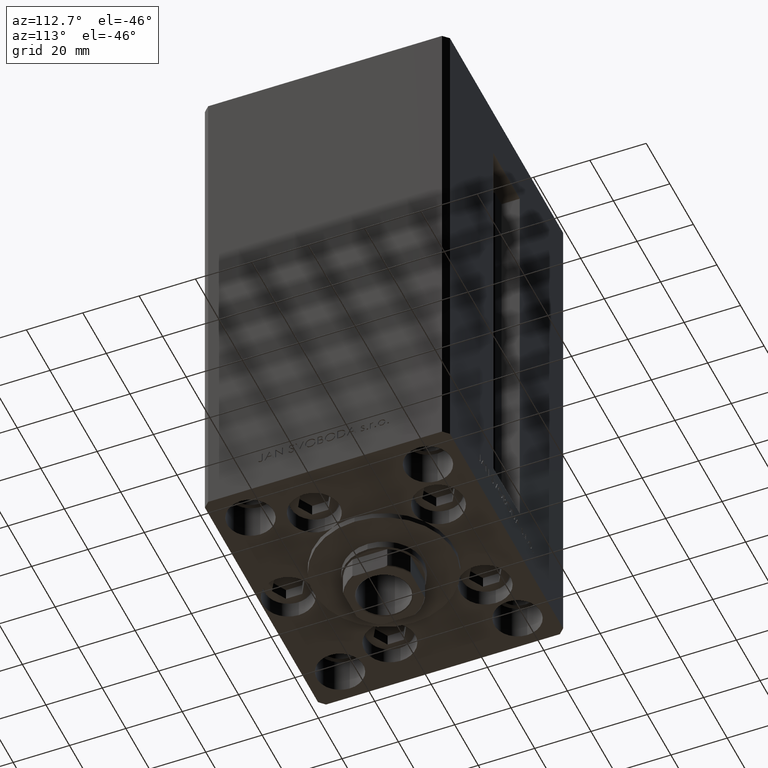
[diagram: clean part render]
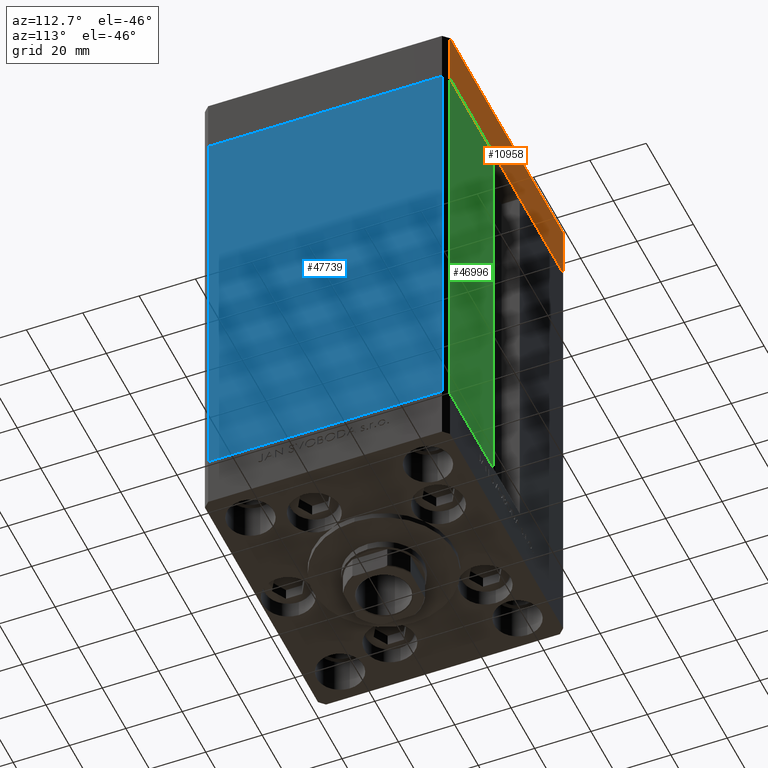
[diagram: same view with three faces highlighted in distinct colors, each labeled with its STEP entity id]
A machine part, auxiliary view with three faces highlighted in distinct colors.
Their STEP definitions:

[orange] entity #10958 — the highlighted planar face has unit normal (-0, 1, 0).
#187 = FACE_OUTER_BOUND ( 'NONE', #11790, .T. ) ;
#1093 = EDGE_CURVE ( 'NONE', #12986, #43703, #24673, .T. ) ;
#6086 = DIRECTION ( 'NONE',  ( -1.000000000000000000, -3.614007241618350743E-16, 0.000000000000000000 ) ) ;
#8573 = DIRECTION ( 'NONE',  ( -3.614007241618350743E-16, 1.000000000000000000, 0.000000000000000000 ) ) ;
#8701 = CARTESIAN_POINT ( 'NONE',  ( 47.99999999999990763, 43.50000000000000000, -19.00000000000000000 ) ) ;
#10484 = VECTOR ( 'NONE', #11972, 1000.000000000000000 ) ;
#10871 = VERTEX_POINT ( 'NONE', #18524 ) ;
#10958 = ADVANCED_FACE ( 'NONE', ( #187 ), #34735, .T. ) ;
#11790 = EDGE_LOOP ( 'NONE', ( #38138, #28897, #14242, #35631 ) ) ;
#11972 = DIRECTION ( 'NONE',  ( 0.000000000000000000, 0.000000000000000000, 1.000000000000000000 ) ) ;
#11976 = DIRECTION ( 'NONE',  ( 0.000000000000000000, 0.000000000000000000, 1.000000000000000000 ) ) ;
#12986 = VERTEX_POINT ( 'NONE', #35589 ) ;
#14058 = CARTESIAN_POINT ( 'NONE',  ( -48.00000000000000711, 43.49999999999996447, 0.000000000000000000 ) ) ;
#14242 = ORIENTED_EDGE ( 'NONE', *, *, #24464, .T. ) ;
#15040 = LINE ( 'NONE', #46730, #10484 ) ;
#15461 = VECTOR ( 'NONE', #11976, 1000.000000000000000 ) ;
#18386 = VECTOR ( 'NONE', #6086, 1000.000000000000000 ) ;
#18524 = CARTESIAN_POINT ( 'NONE',  ( 47.99999999999990763, 43.50000000000000000, -19.00000000000000000 ) ) ;
#20367 = CARTESIAN_POINT ( 'NONE',  ( 47.99999999999990763, 43.50000000000000000, 0.000000000000000000 ) ) ;
#22671 = LINE ( 'NONE', #42440, #28198 ) ;
#24464 = EDGE_CURVE ( 'NONE', #10871, #12986, #43458, .T. ) ;
#24673 = LINE ( 'NONE', #31275, #15461 ) ;
#28198 = VECTOR ( 'NONE', #42189, 1000.000000000000000 ) ;
#28897 = ORIENTED_EDGE ( 'NONE', *, *, #30511, .F. ) ;
#30511 = EDGE_CURVE ( 'NONE', #10871, #30586, #15040, .T. ) ;
#30586 = VERTEX_POINT ( 'NONE', #20367 ) ;
#31275 = CARTESIAN_POINT ( 'NONE',  ( -48.00000000000000711, 43.49999999999996447, -19.00000000000000000 ) ) ;
#34735 = PLANE ( 'NONE',  #41009 ) ;
#35589 = CARTESIAN_POINT ( 'NONE',  ( -48.00000000000000711, 43.49999999999996447, -19.00000000000000000 ) ) ;
#35631 = ORIENTED_EDGE ( 'NONE', *, *, #1093, .T. ) ;
#38138 = ORIENTED_EDGE ( 'NONE', *, *, #44671, .F. ) ;
#41009 = AXIS2_PLACEMENT_3D ( 'NONE', #47145, #8573, #46643 ) ;
#42189 = DIRECTION ( 'NONE',  ( -1.000000000000000000, -3.614007241618350743E-16, 0.000000000000000000 ) ) ;
#42440 = CARTESIAN_POINT ( 'NONE',  ( 47.99999999999990763, 43.50000000000000000, 0.000000000000000000 ) ) ;
#43458 = LINE ( 'NONE', #8701, #18386 ) ;
#43703 = VERTEX_POINT ( 'NONE', #14058 ) ;
#44671 = EDGE_CURVE ( 'NONE', #30586, #43703, #22671, .T. ) ;
#46643 = DIRECTION ( 'NONE',  ( -1.000000000000000000, -3.614007241618350743E-16, 0.000000000000000000 ) ) ;
#46730 = CARTESIAN_POINT ( 'NONE',  ( 47.99999999999990763, 43.50000000000000000, -19.00000000000000000 ) ) ;
#47145 = CARTESIAN_POINT ( 'NONE',  ( 47.99999999999990763, 43.50000000000000000, -19.00000000000000000 ) ) ;

[blue] entity #47739 — the highlighted planar face has unit normal (1, -0, 0).
#658 = AXIS2_PLACEMENT_3D ( 'NONE', #11784, #12031, #42983 ) ;
#901 = VERTEX_POINT ( 'NONE', #9489 ) ;
#2747 = EDGE_CURVE ( 'NONE', #901, #7764, #22339, .T. ) ;
#4155 = PLANE ( 'NONE',  #658 ) ;
#5668 = EDGE_LOOP ( 'NONE', ( #42447, #35652, #21194, #15641 ) ) ;
#6214 = CARTESIAN_POINT ( 'NONE',  ( 50.00000000000001421, 41.49999999999999289, 148.5000000000000000 ) ) ;
#6819 = DIRECTION ( 'NONE',  ( -0.000000000000000000, -0.000000000000000000, -1.000000000000000000 ) ) ;
#7764 = VERTEX_POINT ( 'NONE', #46685 ) ;
#8112 = EDGE_CURVE ( 'NONE', #26121, #7764, #42070, .T. ) ;
#9489 = CARTESIAN_POINT ( 'NONE',  ( 49.99999999999998579, -41.49999999999999289, 148.5000000000000000 ) ) ;
#11784 = CARTESIAN_POINT ( 'NONE',  ( 50.00000000000001421, 41.49999999999999289, 148.5000000000000000 ) ) ;
#12031 = DIRECTION ( 'NONE',  ( 1.000000000000000000, -3.344045254895050480E-16, 0.000000000000000000 ) ) ;
#14101 = LINE ( 'NONE', #6214, #19809 ) ;
#14352 = EDGE_CURVE ( 'NONE', #30718, #26121, #14466, .T. ) ;
#14466 = LINE ( 'NONE', #18780, #39231 ) ;
#14760 = EDGE_CURVE ( 'NONE', #30718, #901, #14101, .T. ) ;
#15604 = FACE_OUTER_BOUND ( 'NONE', #5668, .T. ) ;
#15641 = ORIENTED_EDGE ( 'NONE', *, *, #2747, .T. ) ;
#18780 = CARTESIAN_POINT ( 'NONE',  ( 50.00000000000001421, 41.49999999999999289, 148.5000000000000000 ) ) ;
#18998 = DIRECTION ( 'NONE',  ( -3.344045254895050973E-16, -1.000000000000000000, 0.000000000000000000 ) ) ;
#19809 = VECTOR ( 'NONE', #45281, 1000.000000000000000 ) ;
#21194 = ORIENTED_EDGE ( 'NONE', *, *, #14760, .T. ) ;
#22339 = LINE ( 'NONE', #22848, #39017 ) ;
#22848 = CARTESIAN_POINT ( 'NONE',  ( 49.99999999999998579, -41.49999999999999289, 148.5000000000000000 ) ) ;
#26121 = VERTEX_POINT ( 'NONE', #28227 ) ;
#27071 = VECTOR ( 'NONE', #18998, 1000.000000000000000 ) ;
#28227 = CARTESIAN_POINT ( 'NONE',  ( 50.00000000000001421, 41.49999999999999289, 0.000000000000000000 ) ) ;
#30718 = VERTEX_POINT ( 'NONE', #34203 ) ;
#34203 = CARTESIAN_POINT ( 'NONE',  ( 50.00000000000001421, 41.49999999999999289, 148.5000000000000000 ) ) ;
#35652 = ORIENTED_EDGE ( 'NONE', *, *, #14352, .F. ) ;
#38017 = CARTESIAN_POINT ( 'NONE',  ( 50.00000000000001421, 41.49999999999999289, 0.000000000000000000 ) ) ;
#38307 = DIRECTION ( 'NONE',  ( -0.000000000000000000, -0.000000000000000000, -1.000000000000000000 ) ) ;
#39017 = VECTOR ( 'NONE', #38307, 1000.000000000000000 ) ;
#39231 = VECTOR ( 'NONE', #6819, 1000.000000000000000 ) ;
#42070 = LINE ( 'NONE', #38017, #27071 ) ;
#42447 = ORIENTED_EDGE ( 'NONE', *, *, #8112, .F. ) ;
#42983 = DIRECTION ( 'NONE',  ( 3.344045254895050480E-16, 1.000000000000000000, 0.000000000000000000 ) ) ;
#45281 = DIRECTION ( 'NONE',  ( -3.344045254895050973E-16, -1.000000000000000000, 0.000000000000000000 ) ) ;
#46685 = CARTESIAN_POINT ( 'NONE',  ( 49.99999999999998579, -41.49999999999999289, 0.000000000000000000 ) ) ;
#47739 = ADVANCED_FACE ( 'NONE', ( #15604 ), #4155, .T. ) ;

[green] entity #46996 — the highlighted planar face has unit normal (0, -1, 0).
#534 = LINE ( 'NONE', #28491, #35095 ) ;
#589 = ORIENTED_EDGE ( 'NONE', *, *, #35584, .T. ) ;
#722 = LINE ( 'NONE', #13182, #11450 ) ;
#2548 = ORIENTED_EDGE ( 'NONE', *, *, #28328, .T. ) ;
#7442 = EDGE_CURVE ( 'NONE', #45962, #44760, #534, .T. ) ;
#9669 = PLANE ( 'NONE',  #30707 ) ;
#11450 = VECTOR ( 'NONE', #12164, 1000.000000000000000 ) ;
#12164 = DIRECTION ( 'NONE',  ( -0.000000000000000000, -0.000000000000000000, -1.000000000000000000 ) ) ;
#12202 = CARTESIAN_POINT ( 'NONE',  ( 48.00000000000000711, 43.50000000000000000, 0.000000000000000000 ) ) ;
#13182 = CARTESIAN_POINT ( 'NONE',  ( 48.00000000000000711, 43.50000000000000000, 148.5000000000000000 ) ) ;
#13902 = CARTESIAN_POINT ( 'NONE',  ( -11.24999999999999822, 43.50000000000000000, 148.5000000000000000 ) ) ;
#14416 = ORIENTED_EDGE ( 'NONE', *, *, #7442, .T. ) ;
#15909 = CARTESIAN_POINT ( 'NONE',  ( 11.24999999999999822, 43.50000000000000000, 0.000000000000000000 ) ) ;
#18049 = FACE_OUTER_BOUND ( 'NONE', #18979, .T. ) ;
#18979 = EDGE_LOOP ( 'NONE', ( #14416, #35487, #2548, #589 ) ) ;
#22760 = VECTOR ( 'NONE', #27831, 1000.000000000000000 ) ;
#25162 = DIRECTION ( 'NONE',  ( 0.000000000000000000, -1.000000000000000000, 0.000000000000000000 ) ) ;
#26804 = VERTEX_POINT ( 'NONE', #34335 ) ;
#27831 = DIRECTION ( 'NONE',  ( -0.000000000000000000, -0.000000000000000000, 1.000000000000000000 ) ) ;
#27911 = CARTESIAN_POINT ( 'NONE',  ( 11.24999999999999112, 43.50000000000000000, 148.5000000000000000 ) ) ;
#28328 = EDGE_CURVE ( 'NONE', #44973, #26804, #39772, .T. ) ;
#28491 = CARTESIAN_POINT ( 'NONE',  ( -11.24999999999999822, 43.50000000000000000, 0.000000000000000000 ) ) ;
#30707 = AXIS2_PLACEMENT_3D ( 'NONE', #40370, #25162, #40624 ) ;
#34285 = EDGE_CURVE ( 'NONE', #44760, #44973, #43047, .T. ) ;
#34335 = CARTESIAN_POINT ( 'NONE',  ( 48.00000000000000711, 43.50000000000000000, 148.5000000000000000 ) ) ;
#35095 = VECTOR ( 'NONE', #46997, 1000.000000000000000 ) ;
#35487 = ORIENTED_EDGE ( 'NONE', *, *, #34285, .T. ) ;
#35584 = EDGE_CURVE ( 'NONE', #26804, #45962, #722, .T. ) ;
#35963 = DIRECTION ( 'NONE',  ( 1.000000000000000000, 0.000000000000000000, 0.000000000000000000 ) ) ;
#39772 = LINE ( 'NONE', #13902, #46825 ) ;
#40370 = CARTESIAN_POINT ( 'NONE',  ( -11.24999999999999822, 43.50000000000000000, 148.5000000000000000 ) ) ;
#40624 = DIRECTION ( 'NONE',  ( 0.000000000000000000, -0.000000000000000000, -1.000000000000000000 ) ) ;
#43047 = LINE ( 'NONE', #15909, #22760 ) ;
#43940 = CARTESIAN_POINT ( 'NONE',  ( 11.24999999999999822, 43.50000000000000000, 0.000000000000000000 ) ) ;
#44760 = VERTEX_POINT ( 'NONE', #43940 ) ;
#44973 = VERTEX_POINT ( 'NONE', #27911 ) ;
#45962 = VERTEX_POINT ( 'NONE', #12202 ) ;
#46825 = VECTOR ( 'NONE', #35963, 1000.000000000000000 ) ;
#46996 = ADVANCED_FACE ( 'NONE', ( #18049 ), #9669, .F. ) ;
#46997 = DIRECTION ( 'NONE',  ( -1.000000000000000000, 0.000000000000000000, 0.000000000000000000 ) ) ;